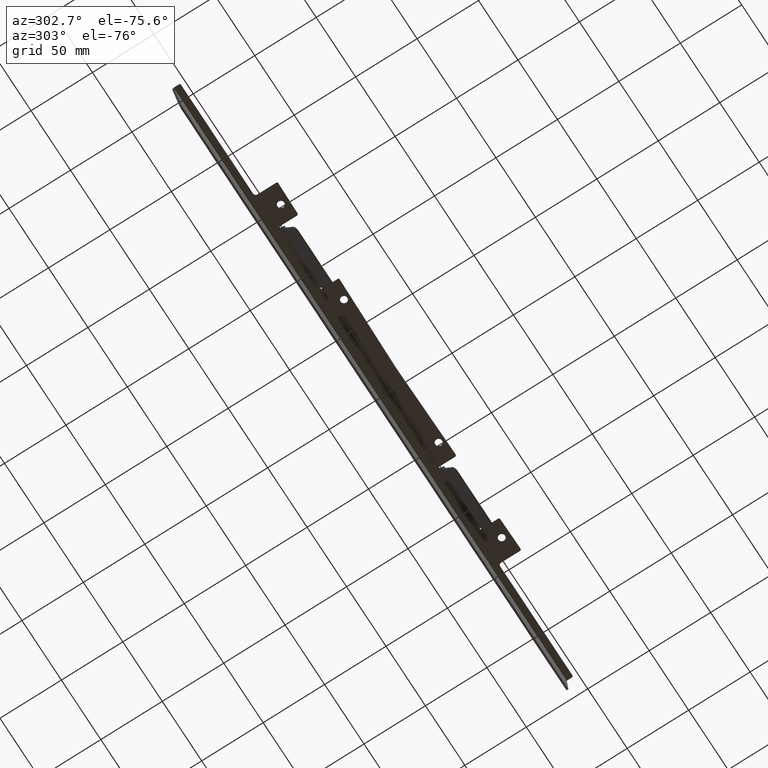
[diagram: clean part render]
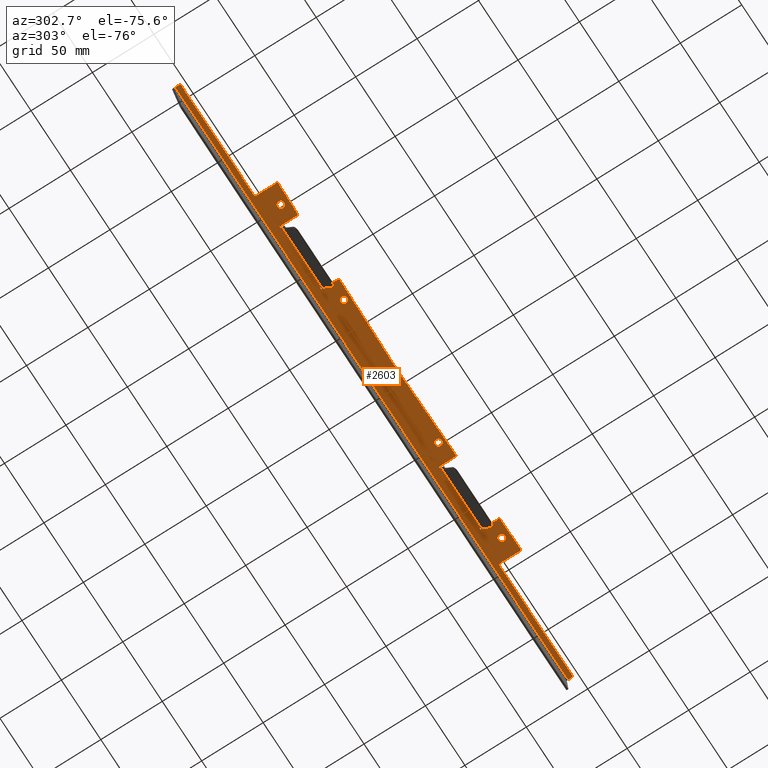
[diagram: same view with one face highlighted and labeled with its STEP entity id]
A machine part, auxiliary view. The second image highlights one B-rep face of the part: STEP entity #2603.
In plain terms, the highlighted planar face has unit normal (0, 0, -1).
Its self-contained STEP definition (entity closure, byte-faithful):
#26 = CIRCLE ( 'NONE', #2562, 1.000000000000000900 ) ;
#31 = CARTESIAN_POINT ( 'NONE',  ( 153.4804832337197000, -7.201629132909636700, -1.500000000000000000 ) ) ;
#39 = DIRECTION ( 'NONE',  ( 0.0000000000000000000, 0.0000000000000000000, -1.000000000000000000 ) ) ;
#49 = EDGE_CURVE ( 'NONE', #1018, #1902, #2709, .T. ) ;
#52 = DIRECTION ( 'NONE',  ( -1.000000000000000000, -0.0000000000000000000, -0.0000000000000000000 ) ) ;
#58 = VECTOR ( 'NONE', #1886, 1000.000000000000000 ) ;
#69 = VERTEX_POINT ( 'NONE', #1397 ) ;
#76 = ORIENTED_EDGE ( 'NONE', *, *, #959, .F. ) ;
#77 = LINE ( 'NONE', #871, #296 ) ;
#86 = DIRECTION ( 'NONE',  ( -0.0000000000000000000, 1.000000000000000000, -0.0000000000000000000 ) ) ;
#87 = VERTEX_POINT ( 'NONE', #1605 ) ;
#91 = LINE ( 'NONE', #968, #1130 ) ;
#93 = CARTESIAN_POINT ( 'NONE',  ( -140.0000000000000000, -0.6226173328502775400, -1.500000000000000000 ) ) ;
#109 = VERTEX_POINT ( 'NONE', #114 ) ;
#114 = CARTESIAN_POINT ( 'NONE',  ( -73.48254759356272800, -5.805259972187044100, -1.500000000000000000 ) ) ;
#121 = ORIENTED_EDGE ( 'NONE', *, *, #1718, .T. ) ;
#129 = EDGE_CURVE ( 'NONE', #2267, #783, #2396, .T. ) ;
#144 = EDGE_CURVE ( 'NONE', #2487, #851, #1873, .T. ) ;
#165 = VERTEX_POINT ( 'NONE', #2776 ) ;
#179 = DIRECTION ( 'NONE',  ( -1.000000000000000000, 0.0000000000000000000, 0.0000000000000000000 ) ) ;
#181 = DIRECTION ( 'NONE',  ( 0.0000000000000000000, 0.0000000000000000000, 1.000000000000000000 ) ) ;
#194 = CARTESIAN_POINT ( 'NONE',  ( 248.0000000000000000, 12.27738266714975000, -1.500000000000000000 ) ) ;
#212 = DIRECTION ( 'NONE',  ( -1.000000000000000000, 0.0000000000000000000, 0.0000000000000000000 ) ) ;
#229 = CARTESIAN_POINT ( 'NONE',  ( 154.4979356401569500, -6.201781437753246500, -1.500000000000000000 ) ) ;
#241 = AXIS2_PLACEMENT_3D ( 'NONE', #1932, #1294, #1505 ) ;
#249 = DIRECTION ( 'NONE',  ( 0.0000000000000000000, 1.000000000000000000, 0.0000000000000000000 ) ) ;
#262 = ORIENTED_EDGE ( 'NONE', *, *, #1389, .T. ) ;
#263 = VECTOR ( 'NONE', #388, 1000.000000000000000 ) ;
#284 = EDGE_CURVE ( 'NONE', #109, #2838, #2833, .T. ) ;
#286 = VECTOR ( 'NONE', #1609, 1000.000000000000000 ) ;
#296 = VECTOR ( 'NONE', #2153, 1000.000000000000000 ) ;
#306 = VECTOR ( 'NONE', #249, 1000.000000000000000 ) ;
#315 = CARTESIAN_POINT ( 'NONE',  ( -154.4979356401569500, -7.219388830725374200, -1.500000000000000000 ) ) ;
#317 = EDGE_CURVE ( 'NONE', #699, #2032, #790, .T. ) ;
#318 = ORIENTED_EDGE ( 'NONE', *, *, #1502, .F. ) ;
#319 = LINE ( 'NONE', #584, #1480 ) ;
#320 = VERTEX_POINT ( 'NONE', #1012 ) ;
#358 = CARTESIAN_POINT ( 'NONE',  ( -128.5000000000000000, -5.765440848082815400, -1.500000000000000000 ) ) ;
#362 = ORIENTED_EDGE ( 'NONE', *, *, #756, .F. ) ;
#363 = DIRECTION ( 'NONE',  ( -0.0000000000000000000, -1.000000000000000000, -0.0000000000000000000 ) ) ;
#365 = DIRECTION ( 'NONE',  ( 0.0000000000000000000, 0.0000000000000000000, -1.000000000000000000 ) ) ;
#378 = DIRECTION ( 'NONE',  ( 0.0000000000000000000, 0.0000000000000000000, 1.000000000000000000 ) ) ;
#386 = CARTESIAN_POINT ( 'NONE',  ( -1.210230878029361600E-013, -4.522617332850309400, -1.500000000000000000 ) ) ;
#388 = DIRECTION ( 'NONE',  ( -0.0000000000000000000, 1.000000000000000000, -0.0000000000000000000 ) ) ;
#391 = ORIENTED_EDGE ( 'NONE', *, *, #49, .F. ) ;
#395 = LINE ( 'NONE', #2644, #2128 ) ;
#402 = ORIENTED_EDGE ( 'NONE', *, *, #2222, .F. ) ;
#404 = CARTESIAN_POINT ( 'NONE',  ( -126.0000000000000000, 8.577382667149718600, -1.500000000000000000 ) ) ;
#421 = CARTESIAN_POINT ( 'NONE',  ( 126.0000000000000000, 7.577382667149659100, -1.499999999999996200 ) ) ;
#427 = CIRCLE ( 'NONE', #1612, 2.000000000000001800 ) ;
#442 = VECTOR ( 'NONE', #1272, 1000.000000000000000 ) ;
#448 = CARTESIAN_POINT ( 'NONE',  ( 140.0000000000000000, -0.6226173328502775400, -1.500000000000000000 ) ) ;
#451 = VERTEX_POINT ( 'NONE', #1881 ) ;
#454 = ORIENTED_EDGE ( 'NONE', *, *, #1361, .T. ) ;
#475 = DIRECTION ( 'NONE',  ( 0.0000000000000000000, 0.0000000000000000000, 1.000000000000000000 ) ) ;
#483 = EDGE_CURVE ( 'NONE', #2022, #1935, #1632, .T. ) ;
#493 = VERTEX_POINT ( 'NONE', #2602 ) ;
#507 = AXIS2_PLACEMENT_3D ( 'NONE', #513, #764, #753 ) ;
#513 = CARTESIAN_POINT ( 'NONE',  ( -73.50000000000001400, -4.805412277030652200, -1.500000000000000000 ) ) ;
#523 = ORIENTED_EDGE ( 'NONE', *, *, #571, .F. ) ;
#525 = ORIENTED_EDGE ( 'NONE', *, *, #1037, .T. ) ;
#544 = DIRECTION ( 'NONE',  ( 0.9998476951563911600, 0.01745240643728699200, 0.0000000000000000000 ) ) ;
#548 = CARTESIAN_POINT ( 'NONE',  ( -126.0000000000000000, 7.577382667149652000, -1.500000000000000000 ) ) ;
#570 = VERTEX_POINT ( 'NONE', #855 ) ;
#571 = EDGE_CURVE ( 'NONE', #69, #1140, #2435, .T. ) ;
#572 = ORIENTED_EDGE ( 'NONE', *, *, #144, .T. ) ;
#584 = CARTESIAN_POINT ( 'NONE',  ( 126.0000000000000000, 7.577382667149652000, -1.500000000000000000 ) ) ;
#590 = ORIENTED_EDGE ( 'NONE', *, *, #1328, .F. ) ;
#593 = CARTESIAN_POINT ( 'NONE',  ( -249.0000000000000000, 15.37738266714962700, -1.500000000000000000 ) ) ;
#594 = DIRECTION ( 'NONE',  ( -1.000000000000000000, 0.0000000000000000000, -0.0000000000000000000 ) ) ;
#598 = CARTESIAN_POINT ( 'NONE',  ( 74.50000000000001400, 8.577382667149670700, -1.500000000000000000 ) ) ;
#613 = AXIS2_PLACEMENT_3D ( 'NONE', #1028, #2315, #1019 ) ;
#635 = CARTESIAN_POINT ( 'NONE',  ( -153.4979356401569500, -6.201781437753243000, -1.500000000000000000 ) ) ;
#637 = CARTESIAN_POINT ( 'NONE',  ( 154.4979356401569500, 11.27738266714972700, -1.500000000000000000 ) ) ;
#641 = VERTEX_POINT ( 'NONE', #1330 ) ;
#647 = VERTEX_POINT ( 'NONE', #1095 ) ;
#689 = DIRECTION ( 'NONE',  ( -1.000000000000000000, 0.0000000000000000000, 0.0000000000000000000 ) ) ;
#693 = DIRECTION ( 'NONE',  ( 0.0000000000000000000, -1.000000000000000000, 0.0000000000000000000 ) ) ;
#694 = VECTOR ( 'NONE', #52, 1000.000000000000000 ) ;
#699 = VERTEX_POINT ( 'NONE', #926 ) ;
#700 = CARTESIAN_POINT ( 'NONE',  ( 156.4979356401569500, 9.277382667149726800, -1.500000000000000000 ) ) ;
#702 = CIRCLE ( 'NONE', #1691, 1.000000000000000900 ) ;
#712 = CARTESIAN_POINT ( 'NONE',  ( -127.5000000000000000, 8.577382667149718600, -1.500000000000000000 ) ) ;
#717 = VECTOR ( 'NONE', #951, 1000.000000000000000 ) ;
#720 = CARTESIAN_POINT ( 'NONE',  ( -154.4979356401569500, 11.27738266714972700, -1.500000000000000000 ) ) ;
#723 = DIRECTION ( 'NONE',  ( -1.000000000000000000, 0.0000000000000000000, 0.0000000000000000000 ) ) ;
#742 = ORIENTED_EDGE ( 'NONE', *, *, #2698, .F. ) ;
#745 = AXIS2_PLACEMENT_3D ( 'NONE', #448, #1541, #2663 ) ;
#748 = CIRCLE ( 'NONE', #2002, 1.000000000000000900 ) ;
#750 = EDGE_CURVE ( 'NONE', #451, #493, #1702, .T. ) ;
#753 = DIRECTION ( 'NONE',  ( -1.000000000000000000, 0.0000000000000000000, 0.0000000000000000000 ) ) ;
#756 = EDGE_CURVE ( 'NONE', #2564, #765, #2277, .T. ) ;
#760 = CARTESIAN_POINT ( 'NONE',  ( -142.7500000000000600, -0.6226173328502772100, -1.500000000000000000 ) ) ;
#764 = DIRECTION ( 'NONE',  ( 0.0000000000000000000, 0.0000000000000000000, -1.000000000000000000 ) ) ;
#765 = VERTEX_POINT ( 'NONE', #1132 ) ;
#766 = ORIENTED_EDGE ( 'NONE', *, *, #1485, .F. ) ;
#779 = ORIENTED_EDGE ( 'NONE', *, *, #1432, .T. ) ;
#782 = CARTESIAN_POINT ( 'NONE',  ( 59.99999999999999300, -0.6226173328502879700, -1.500000000000000000 ) ) ;
#783 = VERTEX_POINT ( 'NONE', #1779 ) ;
#790 = LINE ( 'NONE', #315, #1769 ) ;
#818 = VERTEX_POINT ( 'NONE', #2469 ) ;
#826 = CARTESIAN_POINT ( 'NONE',  ( 59.99999999999999300, -0.6226173328502879700, -1.500000000000000000 ) ) ;
#827 = VECTOR ( 'NONE', #2344, 1000.000000000000000 ) ;
#831 = VERTEX_POINT ( 'NONE', #2037 ) ;
#834 = EDGE_CURVE ( 'NONE', #851, #2487, #2039, .T. ) ;
#838 = ORIENTED_EDGE ( 'NONE', *, *, #1918, .F. ) ;
#851 = VERTEX_POINT ( 'NONE', #2479 ) ;
#855 = CARTESIAN_POINT ( 'NONE',  ( 142.7500000000000600, -0.6226173328502775400, -1.500000000000000000 ) ) ;
#867 = CARTESIAN_POINT ( 'NONE',  ( -156.4979356401569500, 9.277382667149726800, -1.500000000000000000 ) ) ;
#871 = CARTESIAN_POINT ( 'NONE',  ( 127.5000000000000000, 8.577382667149718600, -1.500000000000000000 ) ) ;
#878 = ORIENTED_EDGE ( 'NONE', *, *, #2606, .F. ) ;
#887 = ORIENTED_EDGE ( 'NONE', *, *, #2736, .T. ) ;
#889 = EDGE_CURVE ( 'NONE', #1244, #647, #2497, .T. ) ;
#890 = LINE ( 'NONE', #2204, #306 ) ;
#891 = VECTOR ( 'NONE', #693, 1000.000000000000000 ) ;
#894 = CARTESIAN_POINT ( 'NONE',  ( -74.50000000000001400, -5.823019670002781600, -1.500000000000000000 ) ) ;
#914 = CARTESIAN_POINT ( 'NONE',  ( -59.99999999999999300, -0.6226173328502879700, -1.500000000000000000 ) ) ;
#916 = DIRECTION ( 'NONE',  ( 0.9998476951563911600, -0.01745240643728700500, -0.0000000000000000000 ) ) ;
#920 = VERTEX_POINT ( 'NONE', #1835 ) ;
#921 = CIRCLE ( 'NONE', #1381, 2.750000000000009300 ) ;
#922 = DIRECTION ( 'NONE',  ( -0.0000000000000000000, -0.0000000000000000000, 1.000000000000000000 ) ) ;
#925 = EDGE_CURVE ( 'NONE', #2292, #2267, #1102, .T. ) ;
#926 = CARTESIAN_POINT ( 'NONE',  ( -153.4804832337197000, -7.201629132909636700, -1.500000000000000000 ) ) ;
#951 = DIRECTION ( 'NONE',  ( 1.000000000000000000, 0.0000000000000000000, 0.0000000000000000000 ) ) ;
#959 = EDGE_CURVE ( 'NONE', #2846, #1583, #1667, .T. ) ;
#968 = CARTESIAN_POINT ( 'NONE',  ( 249.0000000000000000, 15.37738266714962700, -1.500000000000000000 ) ) ;
#990 = LINE ( 'NONE', #2867, #2314 ) ;
#998 = CARTESIAN_POINT ( 'NONE',  ( 140.0000000000000000, -0.6226173328502775400, -1.500000000000000000 ) ) ;
#1004 = DIRECTION ( 'NONE',  ( 1.000000000000000000, 0.0000000000000000000, 0.0000000000000000000 ) ) ;
#1012 = CARTESIAN_POINT ( 'NONE',  ( -57.24999999999997900, -0.6226173328502879700, -1.500000000000000000 ) ) ;
#1017 = EDGE_CURVE ( 'NONE', #783, #165, #1500, .T. ) ;
#1018 = VERTEX_POINT ( 'NONE', #2103 ) ;
#1019 = DIRECTION ( 'NONE',  ( -1.000000000000000000, 0.0000000000000000000, 0.0000000000000000000 ) ) ;
#1028 = CARTESIAN_POINT ( 'NONE',  ( -140.0000000000000000, -0.6226173328502775400, -1.500000000000000000 ) ) ;
#1031 = EDGE_CURVE ( 'NONE', #1880, #2220, #1732, .T. ) ;
#1033 = DIRECTION ( 'NONE',  ( 0.9998476951563911600, 0.01745240643728706100, 0.0000000000000000000 ) ) ;
#1037 = EDGE_CURVE ( 'NONE', #570, #2276, #1666, .T. ) ;
#1040 = AXIS2_PLACEMENT_3D ( 'NONE', #826, #181, #2348 ) ;
#1043 = ORIENTED_EDGE ( 'NONE', *, *, #284, .T. ) ;
#1061 = DIRECTION ( 'NONE',  ( -1.000000000000000000, 0.0000000000000000000, 0.0000000000000000000 ) ) ;
#1080 = DIRECTION ( 'NONE',  ( 0.9998476951563911600, -0.01745240643728699200, -0.0000000000000000000 ) ) ;
#1085 = CARTESIAN_POINT ( 'NONE',  ( -249.0000000000000000, 12.27738266714975000, -1.500000000000000000 ) ) ;
#1095 = CARTESIAN_POINT ( 'NONE',  ( 76.00000000000001400, 8.577382667149670700, -1.500000000000000000 ) ) ;
#1102 = LINE ( 'NONE', #2740, #2394 ) ;
#1110 = FACE_BOUND ( 'NONE', #2167, .T. ) ;
#1120 = ORIENTED_EDGE ( 'NONE', *, *, #750, .F. ) ;
#1130 = VECTOR ( 'NONE', #86, 1000.000000000000000 ) ;
#1131 = DIRECTION ( 'NONE',  ( 0.0000000000000000000, 0.0000000000000000000, 1.000000000000000000 ) ) ;
#1132 = CARTESIAN_POINT ( 'NONE',  ( 73.48254759356272800, -5.805259972187044100, -1.500000000000000000 ) ) ;
#1140 = VERTEX_POINT ( 'NONE', #1674 ) ;
#1145 = LINE ( 'NONE', #2788, #263 ) ;
#1154 = ORIENTED_EDGE ( 'NONE', *, *, #483, .F. ) ;
#1170 = VERTEX_POINT ( 'NONE', #2407 ) ;
#1175 = EDGE_LOOP ( 'NONE', ( #887, #454 ) ) ;
#1176 = EDGE_CURVE ( 'NONE', #87, #2443, #1869, .T. ) ;
#1201 = CARTESIAN_POINT ( 'NONE',  ( 128.5000000000000000, -5.765440848082815400, -1.500000000000000000 ) ) ;
#1202 = AXIS2_PLACEMENT_3D ( 'NONE', #700, #922, #2236 ) ;
#1220 = ORIENTED_EDGE ( 'NONE', *, *, #1249, .F. ) ;
#1231 = VECTOR ( 'NONE', #2796, 1000.000000000000000 ) ;
#1244 = VERTEX_POINT ( 'NONE', #598 ) ;
#1246 = VERTEX_POINT ( 'NONE', #229 ) ;
#1249 = EDGE_CURVE ( 'NONE', #2753, #1841, #990, .T. ) ;
#1260 = PLANE ( 'NONE',  #2067 ) ;
#1267 = CIRCLE ( 'NONE', #1334, 1.000000000000000900 ) ;
#1272 = DIRECTION ( 'NONE',  ( 1.000000000000000000, -1.214306433183765200E-016, 0.0000000000000000000 ) ) ;
#1278 = DIRECTION ( 'NONE',  ( 0.0000000000000000000, 0.0000000000000000000, -1.000000000000000000 ) ) ;
#1279 = LINE ( 'NONE', #2461, #286 ) ;
#1294 = DIRECTION ( 'NONE',  ( 0.0000000000000000000, 0.0000000000000000000, -1.000000000000000000 ) ) ;
#1328 = EDGE_CURVE ( 'NONE', #818, #2292, #890, .T. ) ;
#1330 = CARTESIAN_POINT ( 'NONE',  ( 154.4979356401569500, 9.277382667149726800, -1.500000000000000000 ) ) ;
#1334 = AXIS2_PLACEMENT_3D ( 'NONE', #1614, #2496, #723 ) ;
#1358 = ORIENTED_EDGE ( 'NONE', *, *, #1939, .T. ) ;
#1361 = EDGE_CURVE ( 'NONE', #2009, #320, #921, .T. ) ;
#1381 = AXIS2_PLACEMENT_3D ( 'NONE', #1773, #475, #689 ) ;
#1389 = EDGE_CURVE ( 'NONE', #1246, #1391, #748, .T. ) ;
#1390 = CARTESIAN_POINT ( 'NONE',  ( -154.4979356401569500, 11.27738266714972700, -1.500000000000000000 ) ) ;
#1391 = VERTEX_POINT ( 'NONE', #31 ) ;
#1397 = CARTESIAN_POINT ( 'NONE',  ( 156.4979356401569500, 11.27738266714972700, -1.500000000000000000 ) ) ;
#1405 = DIRECTION ( 'NONE',  ( -1.000000000000000000, 0.0000000000000000000, 0.0000000000000000000 ) ) ;
#1408 = LINE ( 'NONE', #894, #2543 ) ;
#1416 = ORIENTED_EDGE ( 'NONE', *, *, #129, .F. ) ;
#1426 = EDGE_CURVE ( 'NONE', #1930, #765, #1267, .T. ) ;
#1432 = EDGE_CURVE ( 'NONE', #2608, #1902, #26, .T. ) ;
#1444 = LINE ( 'NONE', #2731, #694 ) ;
#1457 = ORIENTED_EDGE ( 'NONE', *, *, #1031, .F. ) ;
#1480 = VECTOR ( 'NONE', #1887, 1000.000000000000000 ) ;
#1485 = EDGE_CURVE ( 'NONE', #165, #2753, #2066, .T. ) ;
#1492 = ORIENTED_EDGE ( 'NONE', *, *, #2848, .F. ) ;
#1497 = ORIENTED_EDGE ( 'NONE', *, *, #1955, .F. ) ;
#1498 = VECTOR ( 'NONE', #2485, 1000.000000000000000 ) ;
#1500 = LINE ( 'NONE', #2786, #58 ) ;
#1502 = EDGE_CURVE ( 'NONE', #1170, #831, #91, .T. ) ;
#1505 = DIRECTION ( 'NONE',  ( -1.000000000000000000, 0.0000000000000000000, 0.0000000000000000000 ) ) ;
#1508 = ORIENTED_EDGE ( 'NONE', *, *, #925, .F. ) ;
#1541 = DIRECTION ( 'NONE',  ( 0.0000000000000000000, 0.0000000000000000000, 1.000000000000000000 ) ) ;
#1560 = ORIENTED_EDGE ( 'NONE', *, *, #1645, .T. ) ;
#1563 = VECTOR ( 'NONE', #2113, 1000.000000000000000 ) ;
#1566 = CARTESIAN_POINT ( 'NONE',  ( 153.4979356401569500, -6.201781437753245600, -1.500000000000000000 ) ) ;
#1568 = ORIENTED_EDGE ( 'NONE', *, *, #317, .F. ) ;
#1583 = VERTEX_POINT ( 'NONE', #2107 ) ;
#1585 = DIRECTION ( 'NONE',  ( -1.000000000000000000, 0.0000000000000000000, 0.0000000000000000000 ) ) ;
#1591 = CARTESIAN_POINT ( 'NONE',  ( 74.50000000000001400, -5.823019670002781600, -1.500000000000000000 ) ) ;
#1604 = EDGE_CURVE ( 'NONE', #2443, #87, #2229, .T. ) ;
#1605 = CARTESIAN_POINT ( 'NONE',  ( 57.24999999999997200, -0.6226173328502876400, -1.500000000000000000 ) ) ;
#1609 = DIRECTION ( 'NONE',  ( 0.0000000000000000000, 1.000000000000000000, 0.0000000000000000000 ) ) ;
#1612 = AXIS2_PLACEMENT_3D ( 'NONE', #867, #2355, #2117 ) ;
#1614 = CARTESIAN_POINT ( 'NONE',  ( 73.50000000000001400, -4.805412277030653100, -1.500000000000000000 ) ) ;
#1618 = EDGE_CURVE ( 'NONE', #818, #2032, #2522, .T. ) ;
#1619 = DIRECTION ( 'NONE',  ( 0.0000000000000000000, 0.0000000000000000000, 1.000000000000000000 ) ) ;
#1622 = DIRECTION ( 'NONE',  ( 0.0000000000000000000, 0.0000000000000000000, -1.000000000000000000 ) ) ;
#1632 = LINE ( 'NONE', #1701, #442 ) ;
#1637 = CIRCLE ( 'NONE', #745, 2.750000000000030200 ) ;
#1642 = LINE ( 'NONE', #1689, #2771 ) ;
#1645 = EDGE_CURVE ( 'NONE', #451, #1583, #427, .T. ) ;
#1651 = VECTOR ( 'NONE', #1080, 1000.000000000000000 ) ;
#1657 = CARTESIAN_POINT ( 'NONE',  ( 0.0000000000000000000, 0.0000000000000000000, -1.500000000000000000 ) ) ;
#1666 = CIRCLE ( 'NONE', #1850, 2.750000000000030200 ) ;
#1667 = LINE ( 'NONE', #1390, #1231 ) ;
#1674 = CARTESIAN_POINT ( 'NONE',  ( 248.0000000000000000, 11.27738266714975000, -1.500000000000000000 ) ) ;
#1679 = FACE_BOUND ( 'NONE', #1175, .T. ) ;
#1688 = DIRECTION ( 'NONE',  ( 1.000000000000000000, 0.0000000000000000000, 0.0000000000000000000 ) ) ;
#1689 = CARTESIAN_POINT ( 'NONE',  ( -74.50000000000001400, -5.823019670002781600, -1.500000000000000000 ) ) ;
#1690 = CIRCLE ( 'NONE', #1202, 2.000000000000001800 ) ;
#1691 = AXIS2_PLACEMENT_3D ( 'NONE', #635, #2622, #212 ) ;
#1701 = CARTESIAN_POINT ( 'NONE',  ( 76.00000000000001400, 7.577382667149658200, -1.500000000000000000 ) ) ;
#1702 = LINE ( 'NONE', #720, #891 ) ;
#1715 = ORIENTED_EDGE ( 'NONE', *, *, #834, .T. ) ;
#1718 = EDGE_CURVE ( 'NONE', #2846, #2220, #1785, .T. ) ;
#1722 = ORIENTED_EDGE ( 'NONE', *, *, #1960, .T. ) ;
#1732 = LINE ( 'NONE', #593, #1563 ) ;
#1769 = VECTOR ( 'NONE', #544, 1000.000000000000000 ) ;
#1773 = CARTESIAN_POINT ( 'NONE',  ( -59.99999999999999300, -0.6226173328502879700, -1.500000000000000000 ) ) ;
#1777 = ORIENTED_EDGE ( 'NONE', *, *, #2245, .T. ) ;
#1779 = CARTESIAN_POINT ( 'NONE',  ( -126.0000000000000000, 7.577382667149652000, -1.500000000000000400 ) ) ;
#1785 = CIRCLE ( 'NONE', #241, 1.000000000000000900 ) ;
#1813 = CARTESIAN_POINT ( 'NONE',  ( -248.0000000000000000, 11.27738266714975000, -1.500000000000000000 ) ) ;
#1817 = VECTOR ( 'NONE', #2262, 1000.000000000000000 ) ;
#1835 = CARTESIAN_POINT ( 'NONE',  ( 126.0000000000000000, 8.577382667149718600, -1.500000000000000000 ) ) ;
#1837 = VECTOR ( 'NONE', #363, 1000.000000000000000 ) ;
#1841 = VERTEX_POINT ( 'NONE', #2207 ) ;
#1845 = EDGE_LOOP ( 'NONE', ( #2333, #2307 ) ) ;
#1847 = DIRECTION ( 'NONE',  ( 1.000000000000000000, 0.0000000000000000000, 0.0000000000000000000 ) ) ;
#1849 = ORIENTED_EDGE ( 'NONE', *, *, #2714, .T. ) ;
#1850 = AXIS2_PLACEMENT_3D ( 'NONE', #998, #378, #1688 ) ;
#1869 = CIRCLE ( 'NONE', #1040, 2.750000000000009300 ) ;
#1873 = CIRCLE ( 'NONE', #613, 2.750000000000030200 ) ;
#1877 = CARTESIAN_POINT ( 'NONE',  ( 128.4825475935627400, -6.765288543239205600, -1.500000000000000000 ) ) ;
#1880 = VERTEX_POINT ( 'NONE', #2410 ) ;
#1881 = CARTESIAN_POINT ( 'NONE',  ( -154.4979356401569500, 9.277382667149726800, -1.500000000000000000 ) ) ;
#1882 = DIRECTION ( 'NONE',  ( 0.0000000000000000000, 0.0000000000000000000, -1.000000000000000000 ) ) ;
#1886 = DIRECTION ( 'NONE',  ( 1.000000000000000000, 1.214306433183765200E-016, -0.0000000000000000000 ) ) ;
#1887 = DIRECTION ( 'NONE',  ( 0.0000000000000000000, 1.000000000000000000, 0.0000000000000000000 ) ) ;
#1902 = VERTEX_POINT ( 'NONE', #1975 ) ;
#1918 = EDGE_CURVE ( 'NONE', #2608, #1391, #1999, .T. ) ;
#1930 = VERTEX_POINT ( 'NONE', #2182 ) ;
#1932 = CARTESIAN_POINT ( 'NONE',  ( -248.0000000000000000, 12.27738266714975000, -1.500000000000000000 ) ) ;
#1935 = VERTEX_POINT ( 'NONE', #421 ) ;
#1939 = EDGE_CURVE ( 'NONE', #69, #641, #1690, .T. ) ;
#1955 = EDGE_CURVE ( 'NONE', #647, #2022, #395, .T. ) ;
#1960 = EDGE_CURVE ( 'NONE', #1170, #1140, #2599, .T. ) ;
#1965 = ORIENTED_EDGE ( 'NONE', *, *, #889, .F. ) ;
#1969 = CARTESIAN_POINT ( 'NONE',  ( -76.00000000000001400, 8.577382667149670700, -1.500000000000000000 ) ) ;
#1975 = CARTESIAN_POINT ( 'NONE',  ( 127.5000000000000000, -5.765440848082815400, -1.500000000000000000 ) ) ;
#1980 = DIRECTION ( 'NONE',  ( -0.0000000000000000000, -1.000000000000000000, -0.0000000000000000000 ) ) ;
#1999 = LINE ( 'NONE', #2815, #1651 ) ;
#2002 = AXIS2_PLACEMENT_3D ( 'NONE', #1566, #39, #2230 ) ;
#2009 = VERTEX_POINT ( 'NONE', #2320 ) ;
#2012 = EDGE_CURVE ( 'NONE', #1246, #641, #1145, .T. ) ;
#2022 = VERTEX_POINT ( 'NONE', #2125 ) ;
#2032 = VERTEX_POINT ( 'NONE', #2096 ) ;
#2037 = CARTESIAN_POINT ( 'NONE',  ( 248.9999999999999400, 15.37738266714962900, -1.500000000000000900 ) ) ;
#2039 = CIRCLE ( 'NONE', #2325, 2.750000000000030200 ) ;
#2066 = LINE ( 'NONE', #2506, #1498 ) ;
#2067 = AXIS2_PLACEMENT_3D ( 'NONE', #1657, #365, #594 ) ;
#2069 = CARTESIAN_POINT ( 'NONE',  ( 127.5000000000000000, -6.748138111198501000, -1.500000000000000000 ) ) ;
#2081 = FACE_OUTER_BOUND ( 'NONE', #2673, .T. ) ;
#2091 = EDGE_LOOP ( 'NONE', ( #1715, #572 ) ) ;
#2096 = CARTESIAN_POINT ( 'NONE',  ( -128.4825475935627400, -6.765288543239205600, -1.500000000000000000 ) ) ;
#2103 = CARTESIAN_POINT ( 'NONE',  ( 127.5000000000000000, 8.577382667149718600, -1.500000000000000000 ) ) ;
#2107 = CARTESIAN_POINT ( 'NONE',  ( -156.4979356401569500, 11.27738266714972700, -1.500000000000000000 ) ) ;
#2113 = DIRECTION ( 'NONE',  ( 0.0000000000000000000, -1.000000000000000000, 0.0000000000000000000 ) ) ;
#2117 = DIRECTION ( 'NONE',  ( -1.000000000000000000, 0.0000000000000000000, 0.0000000000000000000 ) ) ;
#2125 = CARTESIAN_POINT ( 'NONE',  ( 76.00000000000001400, 7.577382667149659100, -1.499999999999996200 ) ) ;
#2128 = VECTOR ( 'NONE', #2131, 1000.000000000000000 ) ;
#2131 = DIRECTION ( 'NONE',  ( -0.0000000000000000000, -1.000000000000000000, -0.0000000000000000000 ) ) ;
#2153 = DIRECTION ( 'NONE',  ( 1.000000000000000000, -0.0000000000000000000, -0.0000000000000000000 ) ) ;
#2167 = EDGE_LOOP ( 'NONE', ( #525, #1849 ) ) ;
#2182 = CARTESIAN_POINT ( 'NONE',  ( 74.50000000000001400, -4.805412277030653100, -1.500000000000000000 ) ) ;
#2204 = CARTESIAN_POINT ( 'NONE',  ( -127.5000000000000000, -6.748138111198501000, -1.500000000000000000 ) ) ;
#2207 = CARTESIAN_POINT ( 'NONE',  ( -74.50000000000001400, 8.577382667149670700, -1.500000000000000000 ) ) ;
#2220 = VERTEX_POINT ( 'NONE', #1085 ) ;
#2222 = EDGE_CURVE ( 'NONE', #920, #1018, #77, .T. ) ;
#2229 = CIRCLE ( 'NONE', #2611, 2.750000000000009300 ) ;
#2230 = DIRECTION ( 'NONE',  ( -1.000000000000000000, 0.0000000000000000000, 0.0000000000000000000 ) ) ;
#2236 = DIRECTION ( 'NONE',  ( -1.000000000000000000, 0.0000000000000000000, 0.0000000000000000000 ) ) ;
#2245 = EDGE_CURVE ( 'NONE', #699, #493, #702, .T. ) ;
#2262 = DIRECTION ( 'NONE',  ( -0.0000000000000000000, -1.000000000000000000, -0.0000000000000000000 ) ) ;
#2267 = VERTEX_POINT ( 'NONE', #404 ) ;
#2276 = VERTEX_POINT ( 'NONE', #2470 ) ;
#2277 = LINE ( 'NONE', #1591, #2431 ) ;
#2292 = VERTEX_POINT ( 'NONE', #712 ) ;
#2307 = ORIENTED_EDGE ( 'NONE', *, *, #1176, .T. ) ;
#2314 = VECTOR ( 'NONE', #2421, 1000.000000000000000 ) ;
#2315 = DIRECTION ( 'NONE',  ( 0.0000000000000000000, 0.0000000000000000000, 1.000000000000000000 ) ) ;
#2320 = CARTESIAN_POINT ( 'NONE',  ( -62.75000000000000000, -0.6226173328502876400, -1.500000000000000000 ) ) ;
#2325 = AXIS2_PLACEMENT_3D ( 'NONE', #93, #1619, #1405 ) ;
#2333 = ORIENTED_EDGE ( 'NONE', *, *, #1604, .T. ) ;
#2334 = DIRECTION ( 'NONE',  ( 0.0000000000000000000, 0.0000000000000000000, 1.000000000000000000 ) ) ;
#2344 = DIRECTION ( 'NONE',  ( 1.000000000000000000, 2.386339953572623500E-016, 0.0000000000000000000 ) ) ;
#2348 = DIRECTION ( 'NONE',  ( 1.000000000000000000, 0.0000000000000000000, 0.0000000000000000000 ) ) ;
#2355 = DIRECTION ( 'NONE',  ( -0.0000000000000000000, -0.0000000000000000000, 1.000000000000000000 ) ) ;
#2394 = VECTOR ( 'NONE', #1847, 1000.000000000000000 ) ;
#2396 = LINE ( 'NONE', #548, #1837 ) ;
#2397 = ORIENTED_EDGE ( 'NONE', *, *, #2550, .F. ) ;
#2401 = CIRCLE ( 'NONE', #2689, 2.750000000000009300 ) ;
#2407 = CARTESIAN_POINT ( 'NONE',  ( 249.0000000000000000, 12.27738266714975000, -1.500000000000000000 ) ) ;
#2410 = CARTESIAN_POINT ( 'NONE',  ( -249.0000000000000000, 15.37738266714962900, -1.500000000000000900 ) ) ;
#2421 = DIRECTION ( 'NONE',  ( 1.000000000000000000, -0.0000000000000000000, -0.0000000000000000000 ) ) ;
#2431 = VECTOR ( 'NONE', #916, 1000.000000000000100 ) ;
#2435 = LINE ( 'NONE', #637, #827 ) ;
#2443 = VERTEX_POINT ( 'NONE', #2732 ) ;
#2444 = DIRECTION ( 'NONE',  ( -1.000000000000000000, 0.0000000000000000000, 0.0000000000000000000 ) ) ;
#2461 = CARTESIAN_POINT ( 'NONE',  ( 74.50000000000001400, -5.823019670002781600, -1.500000000000000000 ) ) ;
#2469 = CARTESIAN_POINT ( 'NONE',  ( -127.5000000000000000, -5.765440848082815400, -1.500000000000000000 ) ) ;
#2470 = CARTESIAN_POINT ( 'NONE',  ( 137.2499999999999700, -0.6226173328502772100, -1.500000000000000000 ) ) ;
#2479 = CARTESIAN_POINT ( 'NONE',  ( -137.2499999999999700, -0.6226173328502775400, -1.500000000000000000 ) ) ;
#2485 = DIRECTION ( 'NONE',  ( 0.0000000000000000000, 1.000000000000000000, 0.0000000000000000000 ) ) ;
#2487 = VERTEX_POINT ( 'NONE', #760 ) ;
#2496 = DIRECTION ( 'NONE',  ( 0.0000000000000000000, 0.0000000000000000000, -1.000000000000000000 ) ) ;
#2497 = LINE ( 'NONE', #2758, #717 ) ;
#2506 = CARTESIAN_POINT ( 'NONE',  ( -76.00000000000001400, 7.577382667149658200, -1.500000000000000000 ) ) ;
#2507 = ORIENTED_EDGE ( 'NONE', *, *, #1426, .T. ) ;
#2509 = ORIENTED_EDGE ( 'NONE', *, *, #1618, .T. ) ;
#2520 = ORIENTED_EDGE ( 'NONE', *, *, #2854, .F. ) ;
#2522 = CIRCLE ( 'NONE', #2629, 1.000000000000000900 ) ;
#2541 = ORIENTED_EDGE ( 'NONE', *, *, #1017, .F. ) ;
#2543 = VECTOR ( 'NONE', #1980, 1000.000000000000000 ) ;
#2550 = EDGE_CURVE ( 'NONE', #109, #2564, #1642, .T. ) ;
#2562 = AXIS2_PLACEMENT_3D ( 'NONE', #1201, #1622, #1585 ) ;
#2564 = VERTEX_POINT ( 'NONE', #386 ) ;
#2589 = AXIS2_PLACEMENT_3D ( 'NONE', #194, #1278, #1061 ) ;
#2599 = CIRCLE ( 'NONE', #2589, 1.000000000000000900 ) ;
#2602 = CARTESIAN_POINT ( 'NONE',  ( -154.4979356401569500, -6.201781437753243000, -1.500000000000000000 ) ) ;
#2603 = ADVANCED_FACE ( 'NONE', ( #1110, #2700, #1679, #2733, #2081 ), #1260, .T. ) ;
#2606 = EDGE_CURVE ( 'NONE', #1935, #920, #319, .T. ) ;
#2608 = VERTEX_POINT ( 'NONE', #1877 ) ;
#2611 = AXIS2_PLACEMENT_3D ( 'NONE', #782, #2334, #1004 ) ;
#2622 = DIRECTION ( 'NONE',  ( 0.0000000000000000000, 0.0000000000000000000, -1.000000000000000000 ) ) ;
#2629 = AXIS2_PLACEMENT_3D ( 'NONE', #358, #1882, #179 ) ;
#2644 = CARTESIAN_POINT ( 'NONE',  ( 76.00000000000001400, 7.577382667149658200, -1.500000000000000000 ) ) ;
#2663 = DIRECTION ( 'NONE',  ( 1.000000000000000000, 0.0000000000000000000, 0.0000000000000000000 ) ) ;
#2673 = EDGE_LOOP ( 'NONE', ( #76, #121, #1457, #2520, #318, #1722, #523, #1358, #2862, #262, #838, #779, #391, #402, #878, #1154, #1497, #1965, #1492, #2507, #362, #2397, #1043, #742, #1220, #766, #2541, #1416, #1508, #590, #2509, #1568, #1777, #1120, #1560 ) ) ;
#2689 = AXIS2_PLACEMENT_3D ( 'NONE', #914, #1131, #2444 ) ;
#2698 = EDGE_CURVE ( 'NONE', #1841, #2838, #1408, .T. ) ;
#2700 = FACE_BOUND ( 'NONE', #1845, .T. ) ;
#2709 = LINE ( 'NONE', #2069, #1817 ) ;
#2711 = CARTESIAN_POINT ( 'NONE',  ( -74.50000000000001400, -4.805412277030652200, -1.500000000000000000 ) ) ;
#2714 = EDGE_CURVE ( 'NONE', #2276, #570, #1637, .T. ) ;
#2731 = CARTESIAN_POINT ( 'NONE',  ( -249.0000000000000000, 15.37738266714962700, -1.500000000000000000 ) ) ;
#2732 = CARTESIAN_POINT ( 'NONE',  ( 62.75000000000000000, -0.6226173328502879700, -1.500000000000000000 ) ) ;
#2733 = FACE_BOUND ( 'NONE', #2091, .T. ) ;
#2736 = EDGE_CURVE ( 'NONE', #320, #2009, #2401, .T. ) ;
#2740 = CARTESIAN_POINT ( 'NONE',  ( -127.5000000000000000, 8.577382667149718600, -1.500000000000000000 ) ) ;
#2753 = VERTEX_POINT ( 'NONE', #1969 ) ;
#2758 = CARTESIAN_POINT ( 'NONE',  ( 74.50000000000001400, 8.577382667149670700, -1.500000000000000000 ) ) ;
#2771 = VECTOR ( 'NONE', #1033, 1000.000000000000000 ) ;
#2776 = CARTESIAN_POINT ( 'NONE',  ( -76.00000000000001400, 7.577382667149652000, -1.500000000000000400 ) ) ;
#2786 = CARTESIAN_POINT ( 'NONE',  ( -76.00000000000001400, 7.577382667149658200, -1.500000000000000000 ) ) ;
#2788 = CARTESIAN_POINT ( 'NONE',  ( 154.4979356401569500, 11.27738266714972700, -1.500000000000000000 ) ) ;
#2796 = DIRECTION ( 'NONE',  ( 1.000000000000000000, -2.386339953572623500E-016, -0.0000000000000000000 ) ) ;
#2815 = CARTESIAN_POINT ( 'NONE',  ( 154.4979356401569500, -7.219388830725374200, -1.500000000000000000 ) ) ;
#2833 = CIRCLE ( 'NONE', #507, 1.000000000000000900 ) ;
#2838 = VERTEX_POINT ( 'NONE', #2711 ) ;
#2846 = VERTEX_POINT ( 'NONE', #1813 ) ;
#2848 = EDGE_CURVE ( 'NONE', #1930, #1244, #1279, .T. ) ;
#2854 = EDGE_CURVE ( 'NONE', #831, #1880, #1444, .T. ) ;
#2862 = ORIENTED_EDGE ( 'NONE', *, *, #2012, .F. ) ;
#2867 = CARTESIAN_POINT ( 'NONE',  ( -74.50000000000001400, 8.577382667149670700, -1.500000000000000000 ) ) ;